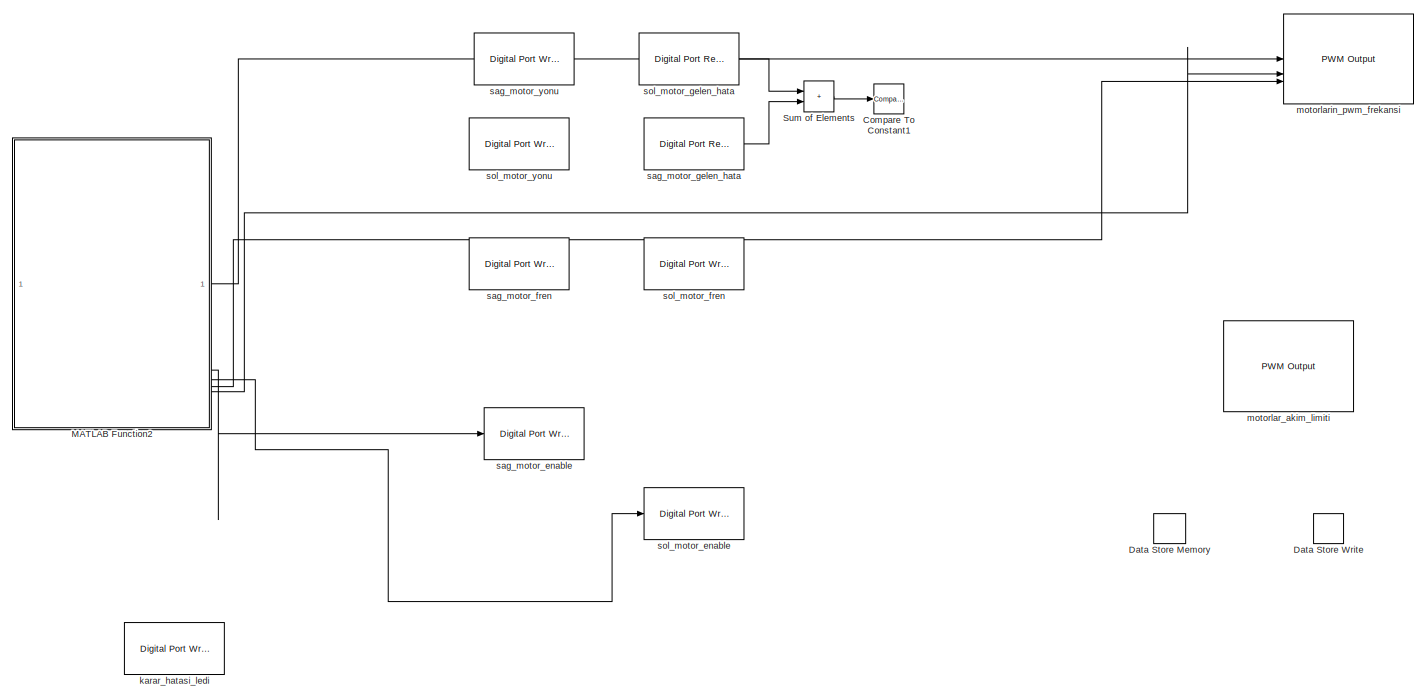
[diagram: root canvas - part 1/3, central region]
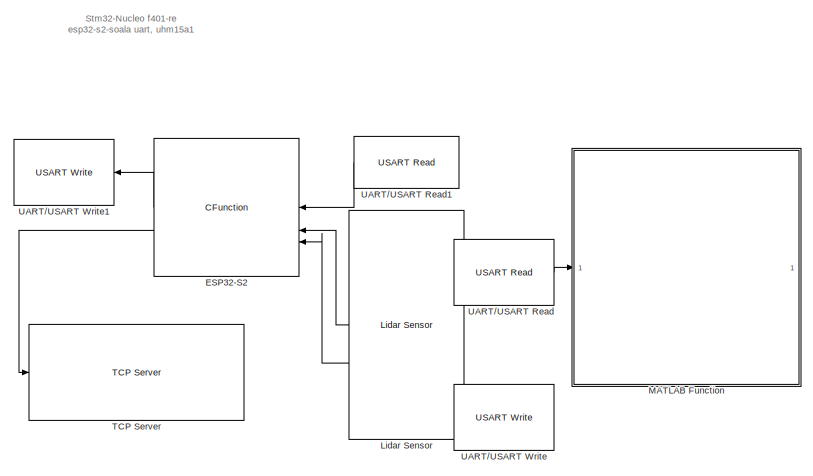
[diagram: root canvas - part 2/3, top left region]
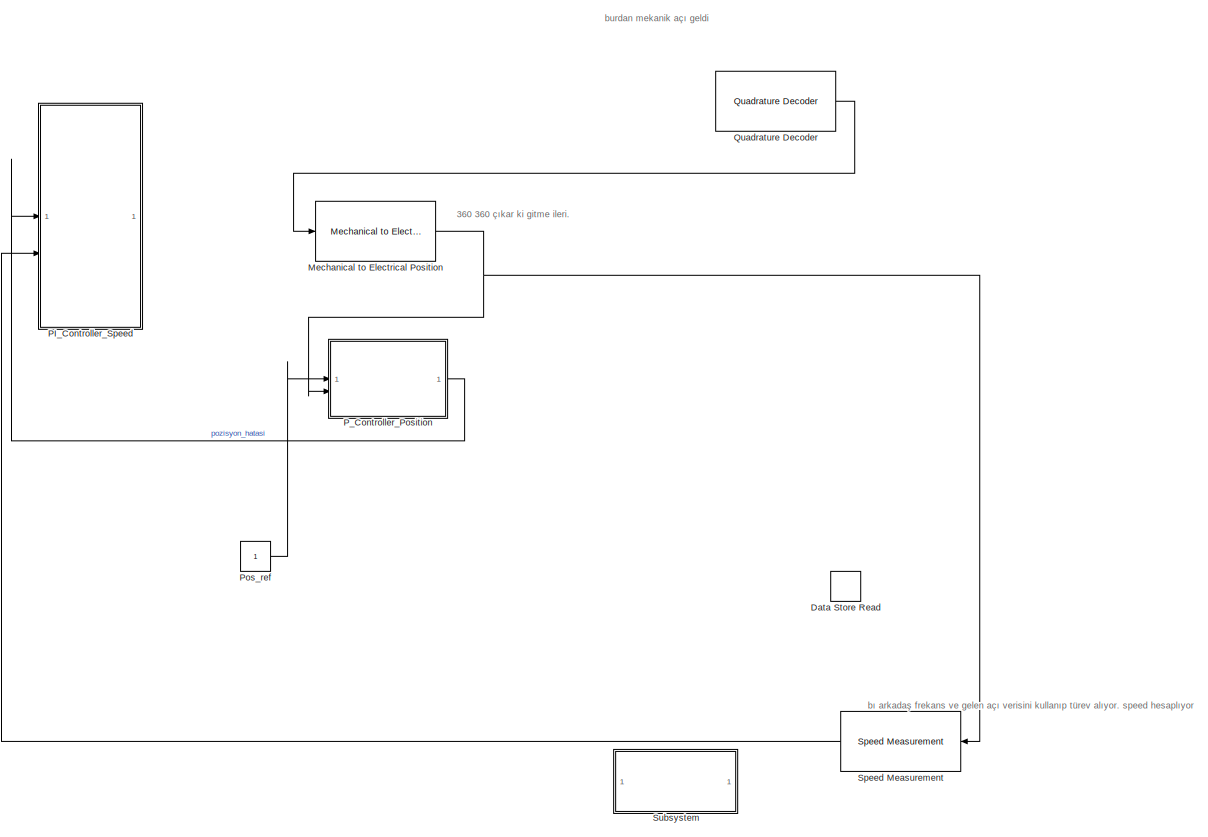
[diagram: root canvas - part 3/3, right side, full height]
MODEL slx_8f9fd69d94ab
KIND model
CONFIG AbsTol = auto
CONFIG EnableMultiTasking = on
CONFIG FixedStep = auto
CONFIG MaxStep = auto
CONFIG MinStep = auto
CONFIG RelTol = 1e-3
CONFIG SampleTimeConstraint = Unconstrained
CONFIG SolverName = FixedStepAuto
CONFIG StartTime = 0.0
CONFIG StopTime = 45
BLOCK [Reference] Compare To Constant1  REF=simulink/Logic and Bit
Operations/Compare
To Constant
  Commented = on
  SourceBlock = simulink/Logic and Bit\nOperations/Compare\nTo Constant
  SourceType = Compare To Constant
BLOCK [DataStoreMemory] Data Store Memory
  OutDataTypeStr = single
  ShowAdditionalParam = off
  WriteAfterWriteMsg = warning
BLOCK [DataStoreRead] Data Store Read
  Commented = on
  IndexOptions = Index vector (dialog)
  Indices = 1
  OutputSizes = 1
BLOCK [DataStoreWrite] Data Store Write
  Commented = on
  IndexOptions = Index vector (dialog)
  Indices = 1
  OutputSizes = 1
BLOCK [CFunction] ESP32-S2
  Commented = on
  NameLocation = top
  StartCode = function [motor1_speed, motor2_speed, duration] = simulateESP32Block()\n%#codegen\n\n% Define the function to simulate ESP32 behavior\ncoder.inline('never');\ncoder.extrinsic('rand');\n\n% Initialize the motor control data structure\ndata.motor1_speed = uint8(0);\ndata.motor2_speed = uint8(0);\ndata.duration = uint8(0);\n\n% Call the function to simulate ESP32 behavior\ndata = simulateESP32();\n\n% Extract the f...<+487ch>
BLOCK [Reference] Lidar Sensor  REF=lidarlib/Lidar Sensor
  Commented = on
  NameLocation = top
  SourceBlock = lidarlib/Lidar Sensor
  SourceType = lidarsimulink.internal.LidarSensorBlock
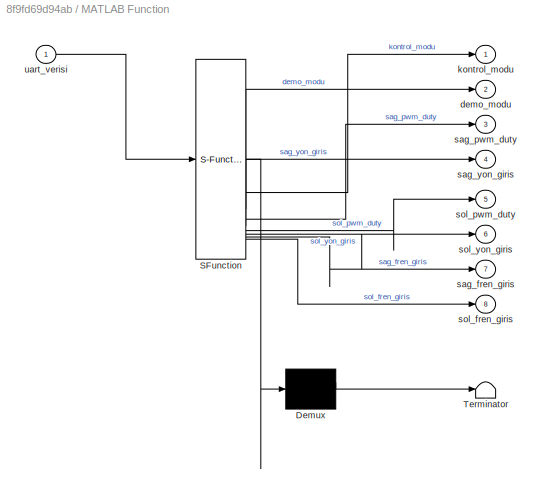
BLOCK [SubSystem] MATLAB Function
  Commented = on
  ErrorFcn = Stateflow.Translate.translate
  PermitHierarchicalResolution = ExplicitOnly
  SFBlockType = MATLAB Function
  TreatAsAtomicUnit = on
BLOCK [Demux] MATLAB Function/ Demux 
  Outputs = 1
BLOCK [S-Function] MATLAB Function/ SFunction 
  EnableBusSupport = on
  FunctionName = sf_sfun
  PortCounts = [1 9]
  SFcnIsStateOwnerBlock = off
  SFunctionDeploymentMode = off
  Tag = Stateflow S-Function 2
BLOCK [Terminator] MATLAB Function/ Terminator 
BLOCK [Outport] MATLAB Function/demo_modu
  Port = 2
BLOCK [Outport] MATLAB Function/kontrol_modu
BLOCK [Outport] MATLAB Function/sag_fren_giris
  Port = 7
BLOCK [Outport] MATLAB Function/sag_pwm_duty
  Port = 3
BLOCK [Outport] MATLAB Function/sag_yon_giris
  Port = 4
BLOCK [Outport] MATLAB Function/sol_fren_giris
  Port = 8
BLOCK [Outport] MATLAB Function/sol_pwm_duty
  Port = 5
BLOCK [Outport] MATLAB Function/sol_yon_giris
  Port = 6
BLOCK [Inport] MATLAB Function/uart_verisi
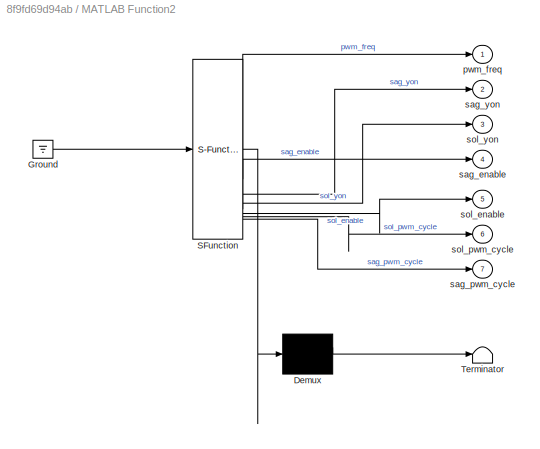
BLOCK [SubSystem] MATLAB Function2
  ErrorFcn = Stateflow.Translate.translate
  PermitHierarchicalResolution = ExplicitOnly
  SFBlockType = MATLAB Function
  TreatAsAtomicUnit = on
BLOCK [Demux] MATLAB Function2/ Demux 
  Outputs = 1
BLOCK [Ground] MATLAB Function2/ Ground 
BLOCK [S-Function] MATLAB Function2/ SFunction 
  EnableBusSupport = on
  FunctionName = sf_sfun
  PortCounts = [1 8]
  SFcnIsStateOwnerBlock = off
  SFunctionDeploymentMode = off
  Tag = Stateflow S-Function 3
BLOCK [Terminator] MATLAB Function2/ Terminator 
BLOCK [Outport] MATLAB Function2/pwm_freq
BLOCK [Outport] MATLAB Function2/sag_enable
  Port = 4
BLOCK [Outport] MATLAB Function2/sag_pwm_cycle
  Port = 7
BLOCK [Outport] MATLAB Function2/sag_yon
  Port = 2
BLOCK [Outport] MATLAB Function2/sol_enable
  Port = 5
BLOCK [Outport] MATLAB Function2/sol_pwm_cycle
  Port = 6
BLOCK [Outport] MATLAB Function2/sol_yon
  Port = 3
BLOCK [Reference] Mechanical to Electrical Position  REF=mcbpositiondecoderlib/Mechanical to Electrical Position
  Commented = on
  LibrarySourceBlock = mcblib/Sensor Decoders/Mechanical to Electrical Position
  SourceBlock = mcbpositiondecoderlib/Mechanical to Electrical Position
  SourceType = Mechanical to Electrical Position
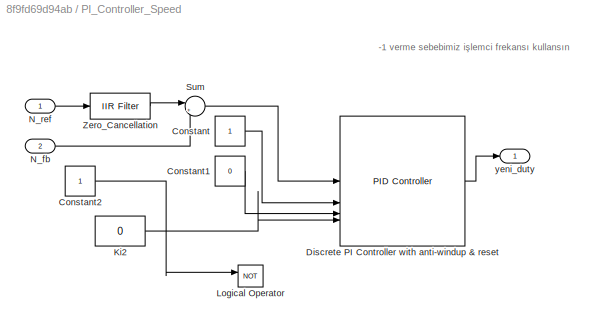
BLOCK [SubSystem] PI_Controller_Speed
  Commented = on
BLOCK [Constant] PI_Controller_Speed/Constant
BLOCK [Constant] PI_Controller_Speed/Constant1
  Value = 0
BLOCK [Constant] PI_Controller_Speed/Constant2
BLOCK [Reference] PI_Controller_Speed/Discrete PI Controller with anti-windup & reset  REF=slpidlib/PID Controller
  LibrarySourceBlock = mcbcontrolslib/PI Controller
  SourceBlock = slpidlib/PID Controller
  SourceType = PID 1dof
BLOCK [Constant] PI_Controller_Speed/Ki2
  NameLocation = top
  OutDataTypeStr = single
  SampleTime = -1
  Value = 0
BLOCK [Logic] PI_Controller_Speed/Logical Operator
  AllPortsSameDT = off
  IconShape = distinctive
  Operator = NOT
  OutDataTypeStr = boolean
BLOCK [Inport] PI_Controller_Speed/N_fb
  Port = 2
BLOCK [Inport] PI_Controller_Speed/N_ref
BLOCK [Sum] PI_Controller_Speed/Sum
  AccumDataTypeStr = Inherit: Same as first input
  Inputs = |+-
  RndMeth = Round
BLOCK [Reference] PI_Controller_Speed/Zero_Cancellation  REF=mcbcontrolslib/IIR Filter
  SourceBlock = mcbcontrolslib/IIR Filter
  SourceType = IIR Filter
BLOCK [Outport] PI_Controller_Speed/yeni_duty
  VectorParamsAs1DForOutWhenUnconnected = off
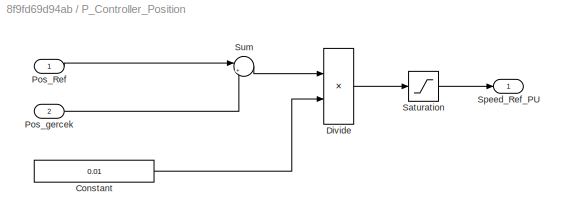
BLOCK [SubSystem] P_Controller_Position
  Commented = on
BLOCK [Constant] P_Controller_Position/Constant
  OutDataTypeStr = single
  SampleTime = -1
  Value = 0.01
BLOCK [Product] P_Controller_Position/Divide
  Inputs = **
  OutDataTypeStr = single
  RndMeth = Simplest
BLOCK [Inport] P_Controller_Position/Pos_Ref
BLOCK [Inport] P_Controller_Position/Pos_gercek
  Port = 2
BLOCK [Saturate] P_Controller_Position/Saturation
  LowerLimit = -PosCtrlSpeedLimit
  UpperLimit = PosCtrlSpeedLimit
BLOCK [Outport] P_Controller_Position/Speed_Ref_PU
BLOCK [Sum] P_Controller_Position/Sum
  Inputs = |+-
  OutDataTypeStr = Inherit: Same as first input
BLOCK [Constant] Pos_ref
  Commented = on
  OutDataTypeStr = single
  SampleTime = -1
BLOCK [Reference] Quadrature Decoder  REF=mcbpositiondecoderlib/Quadrature Decoder
  Commented = on
  LibrarySourceBlock = mcblib/Sensor Decoders/Quadrature Decoder
  SourceBlock = mcbpositiondecoderlib/Quadrature Decoder
  SourceType = Quadrature Decoder
BLOCK [Reference] Speed Measurement  REF=mcbpositiondecoderlib/Speed Measurement
  Commented = on
  LibrarySourceBlock = mcblib/Sensor Decoders/Speed Measurement
  NameLocation = top
  SourceBlock = mcbpositiondecoderlib/Speed Measurement
  SourceType = Speed Measurement
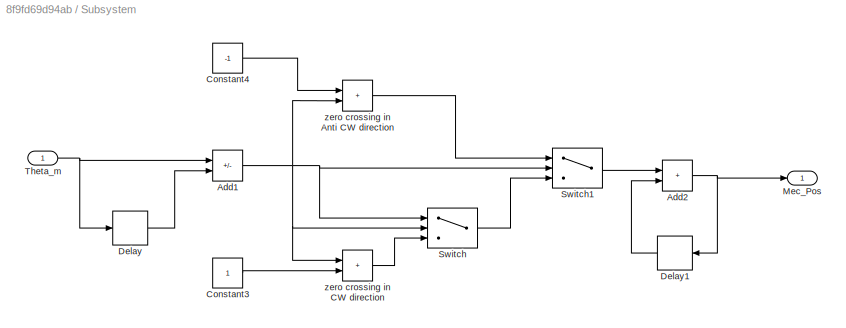
BLOCK [SubSystem] Subsystem
  Commented = on
BLOCK [Sum] Subsystem/Add1
  IconShape = rectangular
  Inputs = +-
BLOCK [Sum] Subsystem/Add2
  IconShape = rectangular
BLOCK [Constant] Subsystem/Constant3
  OutDataTypeStr = dataType
BLOCK [Constant] Subsystem/Constant4
  OutDataTypeStr = dataType
  Value = -1
BLOCK [Delay] Subsystem/Delay
  DelayLength = 1
  InputPortMap = u0
BLOCK [Delay] Subsystem/Delay1
  DelayLength = 1
  InputPortMap = u0
BLOCK [Outport] Subsystem/Mec_Pos
BLOCK [Switch] Subsystem/Switch
  Criteria = u2 > Threshold
  InputSameDT = off
  SaturateOnIntegerOverflow = off
  Threshold = -0.5
BLOCK [Switch] Subsystem/Switch1
  Criteria = u2 > Threshold
  InputSameDT = off
  SaturateOnIntegerOverflow = off
  Threshold = 0.5
BLOCK [Inport] Subsystem/Theta_m
BLOCK [Sum] Subsystem/zero crossing in Anti CW direction
  IconShape = rectangular
BLOCK [Sum] Subsystem/zero crossing in CW direction
  IconShape = rectangular
BLOCK [Sum] Sum of Elements
  Commented = on
  IconShape = rectangular
  OutMin = 2
BLOCK [Reference] TCP Server  REF=slrealtimeiplib/TCP Server
  Commented = on
  Priority = -1
  SourceBlock = slrealtimeiplib/TCP Server
  SourceType = slrealtimetcpserver
BLOCK [Reference] UART//USART Read  REF=stm32blockslib/UART//USART Read
  Commented = on
  LibrarySourceBlock = stm32f4xxblockslib/UART//USART Read
  Priority = 2
  SourceBlock = stm32blockslib/UART//USART Read
  SourceType = stm32cube.blocks.UARTRead
BLOCK [Reference] UART//USART Read1  REF=stm32blockslib/UART//USART Read
  Commented = on
  LibrarySourceBlock = stm32f4xxblockslib/UART//USART Read
  NameLocation = top
  Priority = 2
  SourceBlock = stm32blockslib/UART//USART Read
  SourceType = stm32cube.blocks.UARTRead
BLOCK [Reference] UART//USART Write  REF=stm32blockslib/UART//USART Write
  Commented = on
  LibrarySourceBlock = stm32f4xxblockslib/UART//USART Write
  NameLocation = top
  Priority = 1
  SourceBlock = stm32blockslib/UART//USART Write
  SourceType = stm32cube.blocks.UARTWrite
BLOCK [Reference] UART//USART Write1  REF=stm32blockslib/UART//USART Write
  Commented = on
  LibrarySourceBlock = stm32f4xxblockslib/UART//USART Write
  NameLocation = top
  Priority = 1
  SourceBlock = stm32blockslib/UART//USART Write
  SourceType = stm32cube.blocks.UARTWrite
BLOCK [Reference] karar_hatasi_ledi  REF=stm32f4xxblockslib/Digital Port Write
  AttributesFormatString = %<PinNumber>
  Commented = on
  SourceBlock = stm32f4xxblockslib/Digital Port Write
  SourceType = stm32cube.blocks.DigitalPortWrite
BLOCK [Reference] motorlar_akim_limiti  REF=stm32f4xxblockslib/PWM Output
  Commented = on
  SourceBlock = stm32f4xxblockslib/PWM Output
  SourceType = stm32cube.blocks.PWMOutput
BLOCK [Reference] motorlarin_pwm_frekansi  REF=stm32f4xxblockslib/PWM Output
  SourceBlock = stm32f4xxblockslib/PWM Output
  SourceType = stm32cube.blocks.PWMOutput
BLOCK [Reference] sag_motor_enable  REF=stm32f4xxblockslib/Digital Port Write
  AttributesFormatString = %<PinNumber>
  SourceBlock = stm32f4xxblockslib/Digital Port Write
  SourceType = stm32cube.blocks.DigitalPortWrite
BLOCK [Reference] sag_motor_fren  REF=stm32f4xxblockslib/Digital Port Write
  AttributesFormatString = %<PinNumber>
  Commented = on
  SourceBlock = stm32f4xxblockslib/Digital Port Write
  SourceType = stm32cube.blocks.DigitalPortWrite
BLOCK [Reference] sag_motor_gelen_hata  REF=stm32f4xxblockslib/Digital Port Read
  AttributesFormatString = %<PinNumber>
  Commented = on
  SourceBlock = stm32f4xxblockslib/Digital Port Read
  SourceType = stm32cube.blocks.DigitalPortRead
BLOCK [Reference] sag_motor_yonu  REF=stm32f4xxblockslib/Digital Port Write
  AttributesFormatString = %<PinNumber>
  Commented = on
  SourceBlock = stm32f4xxblockslib/Digital Port Write
  SourceType = stm32cube.blocks.DigitalPortWrite
BLOCK [Reference] sol_motor_enable  REF=stm32f4xxblockslib/Digital Port Write
  AttributesFormatString = %<PinNumber>
  SourceBlock = stm32f4xxblockslib/Digital Port Write
  SourceType = stm32cube.blocks.DigitalPortWrite
BLOCK [Reference] sol_motor_fren  REF=stm32f4xxblockslib/Digital Port Write
  AttributesFormatString = %<PinNumber>
  Commented = on
  SourceBlock = stm32f4xxblockslib/Digital Port Write
  SourceType = stm32cube.blocks.DigitalPortWrite
BLOCK [Reference] sol_motor_gelen_hata  REF=stm32f4xxblockslib/Digital Port Read
  AttributesFormatString = %<PinNumber>
  Commented = on
  SourceBlock = stm32f4xxblockslib/Digital Port Read
  SourceType = stm32cube.blocks.DigitalPortRead
BLOCK [Reference] sol_motor_yonu  REF=stm32f4xxblockslib/Digital Port Write
  AttributesFormatString = %<PinNumber>
  Commented = on
  SourceBlock = stm32f4xxblockslib/Digital Port Write
  SourceType = stm32cube.blocks.DigitalPortWrite
ANNOTATION (root): 360 360 çıkar ki gitme ileri.
ANNOTATION (root): Stm32-Nucleo f401-re esp32-s2-soala uart, uhm15a1
ANNOTATION (root): burdan mekanik açı geldi
ANNOTATION (root): bı arkadaş frekans ve gelen açı verisini kullanıp türev alıyor. speed hesaplıyor
ANNOTATION PI_Controller_Speed: -1 verme sebebimiz işlemci frekansı kullansın
LINE ESP32-S2:1 -> UART//USART Write1:1
LINE ESP32-S2:2 -> TCP Server:1
LINE Lidar Sensor:1 -> ESP32-S2:2
LINE Lidar Sensor:2 -> ESP32-S2:3
LINE MATLAB Function2:1 -> motorlarin_pwm_frekansi:1
LINE MATLAB Function2:4 -> sag_motor_enable:1
LINE MATLAB Function2:5 -> sol_motor_enable:1
LINE MATLAB Function2:6 -> motorlarin_pwm_frekansi:3
LINE MATLAB Function2:7 -> motorlarin_pwm_frekansi:2
NET Mechanical to Electrical Position:1 -> P_Controller_Position:2, Speed Measurement:1
LINE PI_Controller_Speed/Constant1:1 -> PI_Controller_Speed/Discrete PI Controller with anti-windup & reset:3
LINE PI_Controller_Speed/Constant2:1 -> PI_Controller_Speed/Logical Operator:1
LINE PI_Controller_Speed/Constant:1 -> PI_Controller_Speed/Discrete PI Controller with anti-windup & reset:2
LINE PI_Controller_Speed/Discrete PI Controller with anti-windup & reset:1 -> PI_Controller_Speed/yeni_duty:1
LINE PI_Controller_Speed/Ki2:1 -> PI_Controller_Speed/Discrete PI Controller with anti-windup & reset:4
LINE PI_Controller_Speed/N_fb:1 -> PI_Controller_Speed/Sum:2
LINE PI_Controller_Speed/N_ref:1 -> PI_Controller_Speed/Zero_Cancellation:1
LINE PI_Controller_Speed/Sum:1 -> PI_Controller_Speed/Discrete PI Controller with anti-windup & reset:1
LINE PI_Controller_Speed/Zero_Cancellation:1 -> PI_Controller_Speed/Sum:1
LINE P_Controller_Position/Constant:1 -> P_Controller_Position/Divide:2
LINE P_Controller_Position/Divide:1 -> P_Controller_Position/Saturation:1
LINE P_Controller_Position/Pos_Ref:1 -> P_Controller_Position/Sum:1
LINE P_Controller_Position/Pos_gercek:1 -> P_Controller_Position/Sum:2
LINE P_Controller_Position/Saturation:1 -> P_Controller_Position/Speed_Ref_PU:1
LINE P_Controller_Position/Sum:1 -> P_Controller_Position/Divide:1
LINE P_Controller_Position:1 -> PI_Controller_Speed:1
LINE Pos_ref:1 -> P_Controller_Position:1
LINE Quadrature Decoder:1 -> Mechanical to Electrical Position:1
LINE Speed Measurement:1 -> PI_Controller_Speed:2
NET Subsystem/Add1:1 -> Subsystem/Switch1:2, Subsystem/Switch:1, Subsystem/Switch:2, Subsystem/zero crossing in Anti CW direction:2, Subsystem/zero crossing in CW direction:1
NET Subsystem/Add2:1 -> Subsystem/Delay1:1, Subsystem/Mec_Pos:1
LINE Subsystem/Constant3:1 -> Subsystem/zero crossing in CW direction:2
LINE Subsystem/Constant4:1 -> Subsystem/zero crossing in Anti CW direction:1
LINE Subsystem/Delay1:1 -> Subsystem/Add2:2
LINE Subsystem/Delay:1 -> Subsystem/Add1:2
LINE Subsystem/Switch1:1 -> Subsystem/Add2:1
LINE Subsystem/Switch:1 -> Subsystem/Switch1:3
NET Subsystem/Theta_m:1 -> Subsystem/Add1:1, Subsystem/Delay:1
LINE Subsystem/zero crossing in Anti CW direction:1 -> Subsystem/Switch1:1
LINE Subsystem/zero crossing in CW direction:1 -> Subsystem/Switch:3
LINE Sum of Elements:1 -> Compare To Constant1:1
LINE UART//USART Read1:1 -> ESP32-S2:1
LINE UART//USART Read:1 -> MATLAB Function:1
LINE sag_motor_gelen_hata:1 -> Sum of Elements:2
LINE sol_motor_gelen_hata:1 -> Sum of Elements:1
note: NET lines group one-source signal fan-out (src -> all destinations, sorted); 1:1 wires keep LINE
CHART MATLAB Function states=1 transitions=1
  STATE_LABEL 'eML_blk_kernel()'
  STATE_LABEL 'SCRIPT:\nfunction [kontrol_modu, demo_modu, sag_pwm_duty, sag_yon_giris, sol_pwm_duty, sol_yon_giris, sag_fren_giris, sol_fren_giris] = process_uart_data(uart_verisi)\n    % UART verisini işleyerek kontrol sinyallerini çıkartır\n    % Başlık çıkarma\n    baslik = uart_verisi(1);\n    \n    % Varsayılan değerler\n    kontrol_modu = uint8(2); % Başlangıç değeri olarak demo modu\n    demo_modu = uint8(1); % ...<+1072ch>'
CHART MATLAB Function2 states=1 transitions=1
  STATE_LABEL 'eML_blk_kernel()'
  STATE_LABEL 'SCRIPT:\nfunction [pwm_freq, sag_yon, sol_yon, sag_enable, sol_enable, sol_pwm_cycle, sag_pwm_cycle] = motor_secici\n%#codegen\n\n% Sabit PWM frekansı\npwm_freq = uint32(13500);  % 13.5 kHz\n\n% Başlangıç değerlerini ayarla\nsag_pwm_cycle = uint8(0);  % Sağ motor PWM duty cycle (0.0 to 1.0)\nsag_yon = uint8(0);   % Sağ motor yön kontrolü\nsol_pwm_cycle = uint8(0);  % Sol motor PWM duty cycle (0.0 to 1.0)\nso...<+466ch>'
CHART  states=0 transitions=0
CHART  states=0 transitions=0
